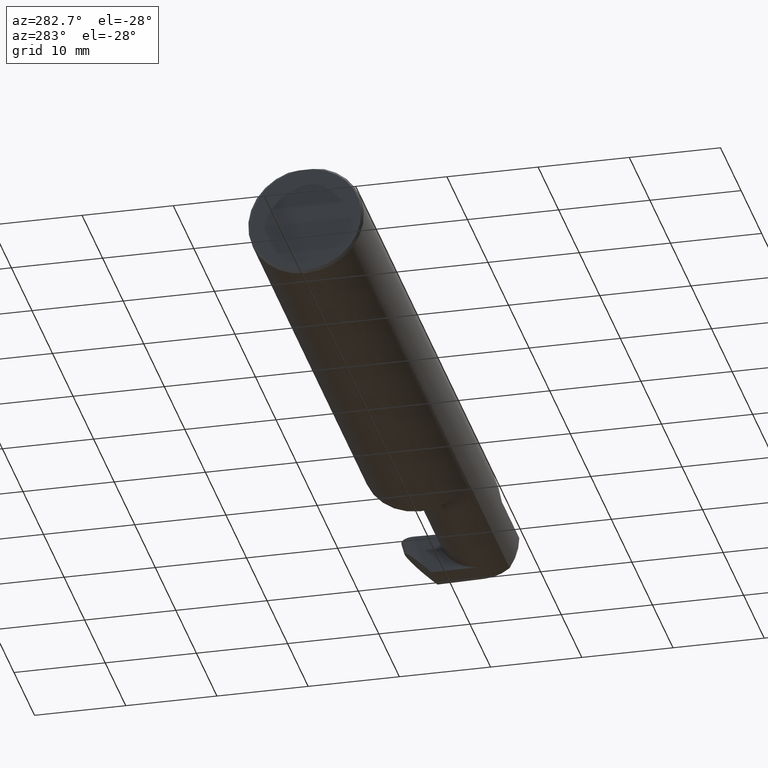
[diagram: clean part render]
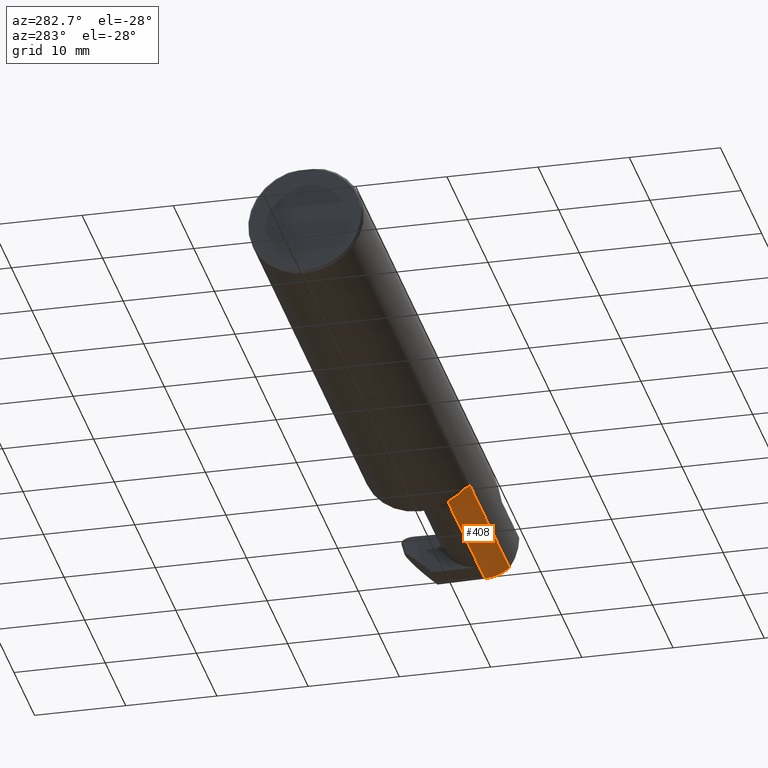
[diagram: same view with one face highlighted and labeled with its STEP entity id]
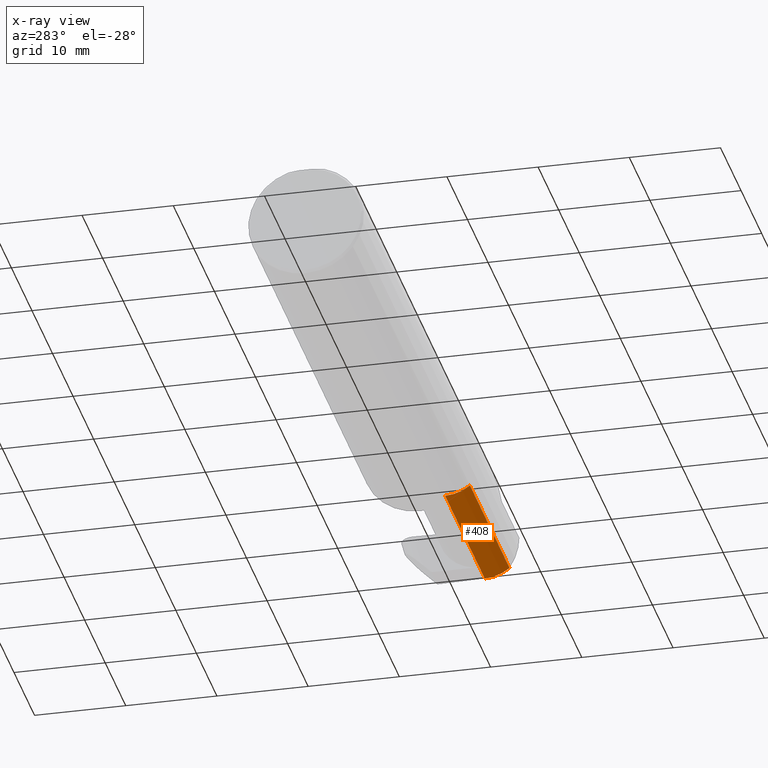
[diagram: x-ray of the same camera — body ghosted, the highlighted face saturated]
A machine part, auxiliary view. The second image highlights one B-rep face of the part: STEP entity #408.
The next image is the same camera in x-ray: the body ghosted, the highlighted face saturated — about 0% of this face is hidden behind the body in this view.
In plain terms, the highlighted cylindrical surface (partial cylindrical patch) has radius 4.445 mm, axis along (-1, -0, -0).
Its self-contained STEP definition (entity closure, byte-faithful):
#62 = VERTEX_POINT ( 'NONE', #505 ) ;
#65 = CARTESIAN_POINT ( 'NONE',  ( 2.983929579294953616, -0.2080850024789289987, -0.1382955322609668025 ) ) ;
#68 = CARTESIAN_POINT ( 'NONE',  ( 2.549394315000000244, -0.2080850024789289987, -0.1382955322609668025 ) ) ;
#95 = CARTESIAN_POINT ( 'NONE',  ( 2.225000000000000089, -0.1008499999999999952, -0.1750000000000000167 ) ) ;
#108 = CARTESIAN_POINT ( 'NONE',  ( 3.402190948718818664, -0.1008500000000001340, -0.1750000000000000722 ) ) ;
#111 = DIRECTION ( 'NONE',  ( -1.000000000000000000, -0.000000000000000000, -0.000000000000000000 ) ) ;
#124 = CARTESIAN_POINT ( 'NONE',  ( 2.225000000000000089, -0.1008500000000000091, 0.000000000000000000 ) ) ;
#131 = CARTESIAN_POINT ( 'NONE',  ( 2.200000000000000178, -0.1008499999999999952, -0.1750000000000000444 ) ) ;
#135 = VERTEX_POINT ( 'NONE', #65 ) ;
#163 = CARTESIAN_POINT ( 'NONE',  ( 2.225000000000000089, -0.2080850024789289709, -0.1382955322609668025 ) ) ;
#190 = EDGE_CURVE ( 'NONE', #62, #652, #754, .T. ) ;
#192 = AXIS2_PLACEMENT_3D ( 'NONE', #356, #738, #669 ) ;
#202 = LINE ( 'NONE', #68, #672 ) ;
#209 = ORIENTED_EDGE ( 'NONE', *, *, #521, .T. ) ;
#253 = EDGE_LOOP ( 'NONE', ( #542, #822, #735, #209, #716 ) ) ;
#284 = CARTESIAN_POINT ( 'NONE',  ( 2.984591634083985756, -0.1771157075472508668, -0.1623092683844331585 ) ) ;
#299 = VERTEX_POINT ( 'NONE', #163 ) ;
#307 = DIRECTION ( 'NONE',  ( -1.000000000000000000, -0.000000000000000000, -0.000000000000000000 ) ) ;
#352 = CARTESIAN_POINT ( 'NONE',  ( 2.983929579294953616, -0.2080850024789289987, -0.1382955322609668025 ) ) ;
#354 = CIRCLE ( 'NONE', #562, 0.1750000000000000167 ) ;
#356 = CARTESIAN_POINT ( 'NONE',  ( 2.200000000000000178, -0.1008500000000000091, 0.000000000000000000 ) ) ;
#408 = ADVANCED_FACE ( 'NONE', ( #610 ), #676, .T. ) ;
#421 = EDGE_CURVE ( 'NONE', #615, #62, #533, .T. ) ;
#483 = DIRECTION ( 'NONE',  ( -1.000000000000000000, -0.000000000000000000, -0.000000000000000000 ) ) ;
#486 = VECTOR ( 'NONE', #625, 39.37007874015748143 ) ;
#487 = EDGE_CURVE ( 'NONE', #652, #299, #354, .T. ) ;
#496 = EDGE_CURVE ( 'NONE', #135, #615, #793, .T. ) ;
#505 = CARTESIAN_POINT ( 'NONE',  ( 2.880805159919762826, -0.1008500000000000368, -0.1750000000000000444 ) ) ;
#521 = EDGE_CURVE ( 'NONE', #135, #299, #202, .T. ) ;
#533 = LINE ( 'NONE', #108, #713 ) ;
#542 = ORIENTED_EDGE ( 'NONE', *, *, #190, .F. ) ;
#562 = AXIS2_PLACEMENT_3D ( 'NONE', #124, #111, #733 ) ;
#565 = CARTESIAN_POINT ( 'NONE',  ( 2.987033238708274752, -0.1008500000000001340, -0.1750000000000000722 ) ) ;
#603 = CARTESIAN_POINT ( 'NONE',  ( 2.985664738015655129, -0.1400387324517231025, -0.1750000000000000999 ) ) ;
#610 = FACE_OUTER_BOUND ( 'NONE', #253, .T. ) ;
#615 = VERTEX_POINT ( 'NONE', #565 ) ;
#625 = DIRECTION ( 'NONE',  ( -1.000000000000000000, -0.000000000000000000, -0.000000000000000000 ) ) ;
#652 = VERTEX_POINT ( 'NONE', #95 ) ;
#669 = DIRECTION ( 'NONE',  ( 0.000000000000000000, 0.000000000000000000, 1.000000000000000000 ) ) ;
#672 = VECTOR ( 'NONE', #307, 39.37007874015748143 ) ;
#676 = CYLINDRICAL_SURFACE ( 'NONE', #192, 0.1750000000000000444 ) ;
#713 = VECTOR ( 'NONE', #483, 39.37007874015748143 ) ;
#716 = ORIENTED_EDGE ( 'NONE', *, *, #487, .F. ) ;
#733 = DIRECTION ( 'NONE',  ( 0.000000000000000000, 0.000000000000000000, 1.000000000000000000 ) ) ;
#735 = ORIENTED_EDGE ( 'NONE', *, *, #496, .F. ) ;
#738 = DIRECTION ( 'NONE',  ( -1.000000000000000000, -0.000000000000000000, -0.000000000000000000 ) ) ;
#754 = LINE ( 'NONE', #131, #486 ) ;
#793 =( BOUNDED_CURVE ( )  B_SPLINE_CURVE ( 3, ( #352, #284, #603, #805 ),
 .UNSPECIFIED., .F., .F. ) 
 B_SPLINE_CURVE_WITH_KNOTS ( ( 4, 4 ),
 ( 0.4474640105399648737, 1.107026853503869868 ),
 .UNSPECIFIED. ) 
 CURVE ( )  GEOMETRIC_REPRESENTATION_ITEM ( )  RATIONAL_B_SPLINE_CURVE ( ( 1.000000000000000000, 0.9640754331822831702, 0.9640754331822831702, 1.000000000000000000 ) ) 
 REPRESENTATION_ITEM ( '' )  );
#805 = CARTESIAN_POINT ( 'NONE',  ( 2.987033238708274752, -0.1008500000000001340, -0.1750000000000000722 ) ) ;
#822 = ORIENTED_EDGE ( 'NONE', *, *, #421, .F. ) ;